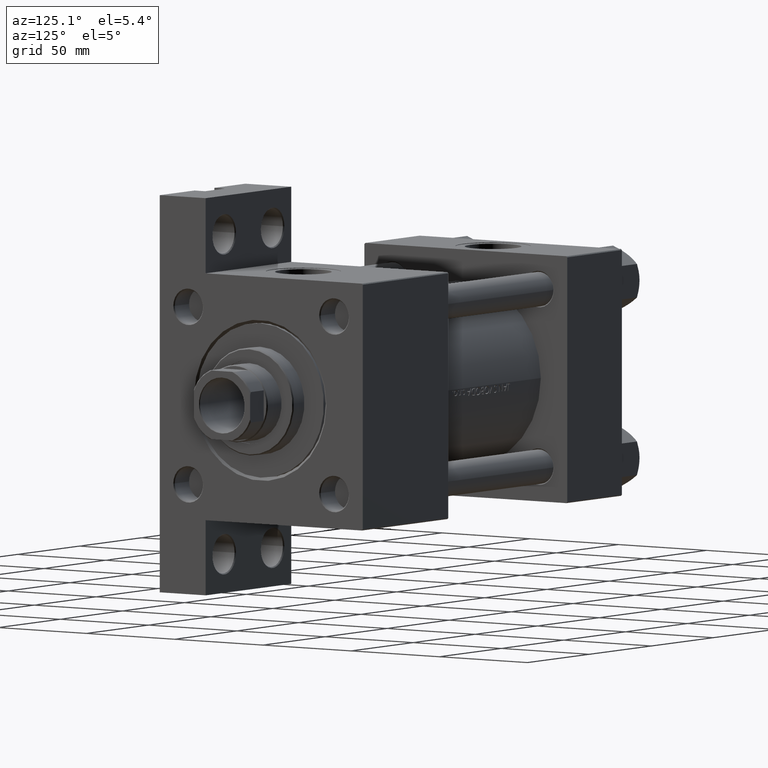
[diagram: clean part render]
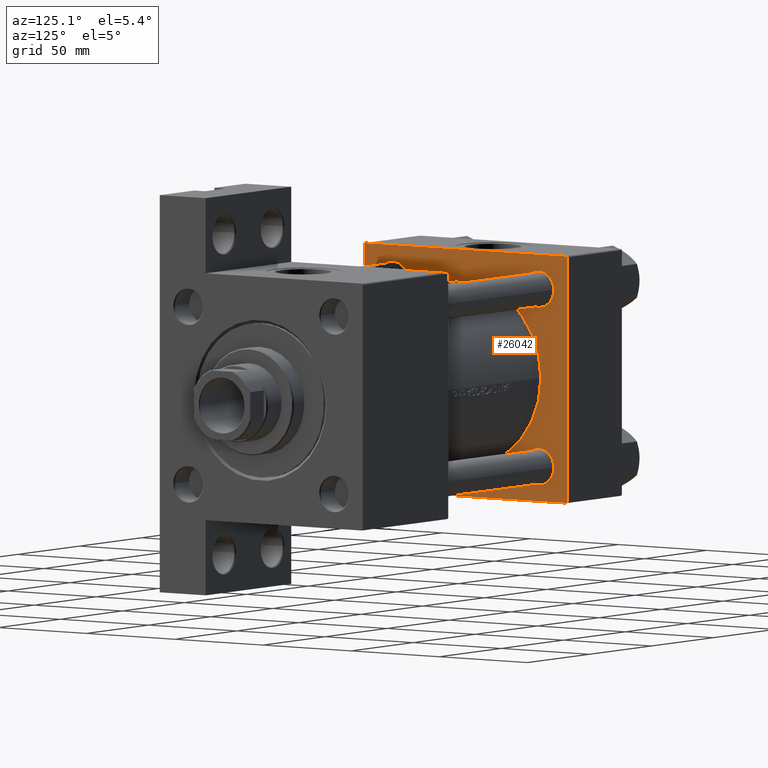
[diagram: same view with one face highlighted and labeled with its STEP entity id]
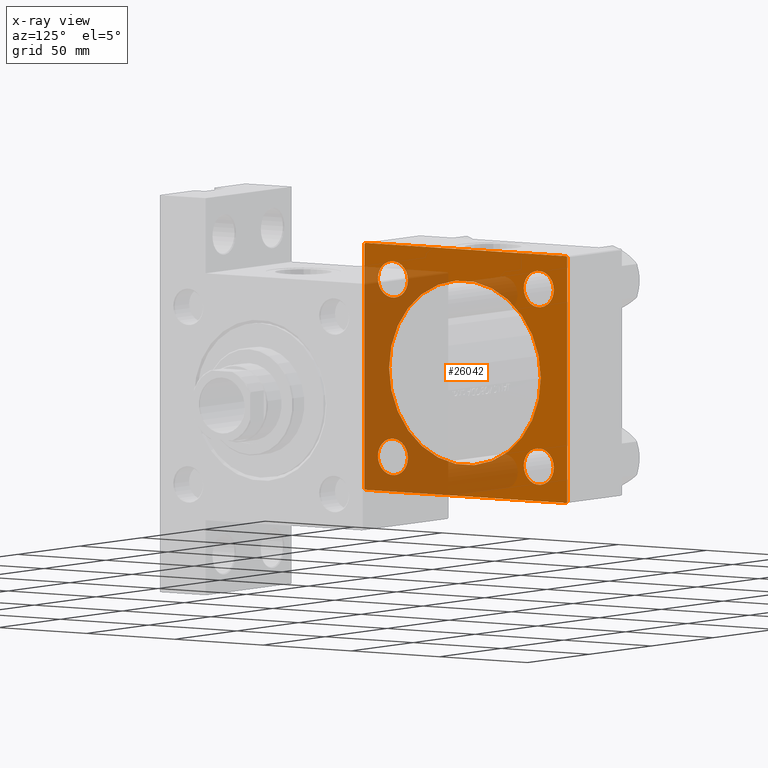
[diagram: x-ray of the same camera — body ghosted, the highlighted face saturated]
A machine part, auxiliary view. The second image highlights one B-rep face of the part: STEP entity #26042.
The next image is the same camera in x-ray: the body ghosted, the highlighted face saturated — about 48% of this face is hidden behind the body in this view.
In plain terms, the highlighted planar face has unit normal (-1, 0, -0).
Its self-contained STEP definition (entity closure, byte-faithful):
#217 = CARTESIAN_POINT ( 'NONE',  ( 44.00000000000000000, -41.34999999999998721, 41.35000000000000853 ) ) ;
#319 = LINE ( 'NONE', #29961, #40179 ) ;
#519 = DIRECTION ( 'NONE',  ( 0.000000000000000000, 0.000000000000000000, 1.000000000000000000 ) ) ;
#580 = VERTEX_POINT ( 'NONE', #42964 ) ;
#908 = DIRECTION ( 'NONE',  ( -1.000000000000000000, 0.000000000000000000, -0.000000000000000000 ) ) ;
#919 = EDGE_CURVE ( 'NONE', #14746, #15203, #5676, .T. ) ;
#975 = DIRECTION ( 'NONE',  ( -0.000000000000000000, 0.7071067811865376918, 0.7071067811865573427 ) ) ;
#1691 = LINE ( 'NONE', #16493, #5880 ) ;
#1842 = EDGE_LOOP ( 'NONE', ( #35899, #26929 ) ) ;
#2373 = AXIS2_PLACEMENT_3D ( 'NONE', #32779, #43759, #6067 ) ;
#2390 = DIRECTION ( 'NONE',  ( 0.000000000000000000, 0.000000000000000000, 1.000000000000000000 ) ) ;
#3513 = LINE ( 'NONE', #29974, #41982 ) ;
#3540 = VERTEX_POINT ( 'NONE', #28089 ) ;
#3890 = EDGE_CURVE ( 'NONE', #42439, #28582, #34301, .T. ) ;
#4475 = CARTESIAN_POINT ( 'NONE',  ( 44.00000000000000000, 57.00000000000000711, 57.50000000000000711 ) ) ;
#4510 = AXIS2_PLACEMENT_3D ( 'NONE', #20145, #42334, #28401 ) ;
#4543 = EDGE_LOOP ( 'NONE', ( #10611, #43380 ) ) ;
#4631 = VECTOR ( 'NONE', #25278, 1000.000000000000000 ) ;
#5029 = CARTESIAN_POINT ( 'NONE',  ( 44.00000000000000000, 5.327213576290985256E-15, -43.49999999999999289 ) ) ;
#5676 = CIRCLE ( 'NONE', #11871, 8.500000000000007105 ) ;
#5880 = VECTOR ( 'NONE', #975, 1000.000000000000114 ) ;
#6067 = DIRECTION ( 'NONE',  ( -0.000000000000000000, 0.000000000000000000, 1.000000000000000000 ) ) ;
#6400 = VECTOR ( 'NONE', #18292, 1000.000000000000114 ) ;
#6572 = VECTOR ( 'NONE', #20184, 1000.000000000000000 ) ;
#6607 = CARTESIAN_POINT ( 'NONE',  ( 44.00000000000000000, -41.34999999999998721, 32.85000000000000142 ) ) ;
#6739 = EDGE_LOOP ( 'NONE', ( #31881, #41284, #25767, #35139, #13524, #16496, #18196, #35755 ) ) ;
#6743 = CARTESIAN_POINT ( 'NONE',  ( 44.00000000000000000, -41.34999999999998721, -41.35000000000000853 ) ) ;
#7376 = CARTESIAN_POINT ( 'NONE',  ( 44.00000000000000000, -57.00000000000000711, -57.50000000000000711 ) ) ;
#7560 = EDGE_CURVE ( 'NONE', #24902, #28582, #1691, .T. ) ;
#8271 = CARTESIAN_POINT ( 'NONE',  ( 44.00000000000000000, 57.00000000000000711, 57.50000000000000711 ) ) ;
#8453 = DIRECTION ( 'NONE',  ( 1.000000000000000000, -0.000000000000000000, 0.000000000000000000 ) ) ;
#9080 = CIRCLE ( 'NONE', #14451, 43.00000000000000000 ) ;
#9097 = ORIENTED_EDGE ( 'NONE', *, *, #30322, .T. ) ;
#9607 = CARTESIAN_POINT ( 'NONE',  ( 44.00000000000000000, -57.50000000000000711, -57.00000000000000711 ) ) ;
#9712 = VERTEX_POINT ( 'NONE', #8271 ) ;
#9780 = EDGE_LOOP ( 'NONE', ( #37584, #37428 ) ) ;
#10611 = ORIENTED_EDGE ( 'NONE', *, *, #46184, .T. ) ;
#10665 = FACE_BOUND ( 'NONE', #22819, .T. ) ;
#10903 = CARTESIAN_POINT ( 'NONE',  ( 44.00000000000000000, -41.34999999999998721, -32.85000000000000142 ) ) ;
#11066 = CARTESIAN_POINT ( 'NONE',  ( 44.00000000000000000, -41.34999999999998721, -49.85000000000002274 ) ) ;
#11386 = DIRECTION ( 'NONE',  ( 0.000000000000000000, 0.000000000000000000, 1.000000000000000000 ) ) ;
#11613 = LINE ( 'NONE', #34699, #15396 ) ;
#11729 = DIRECTION ( 'NONE',  ( 0.000000000000000000, 0.000000000000000000, -1.000000000000000000 ) ) ;
#11871 = AXIS2_PLACEMENT_3D ( 'NONE', #27537, #46313, #12958 ) ;
#12062 = ORIENTED_EDGE ( 'NONE', *, *, #43251, .T. ) ;
#12302 = EDGE_CURVE ( 'NONE', #46141, #13417, #9080, .T. ) ;
#12422 = CIRCLE ( 'NONE', #18628, 8.500000000000007105 ) ;
#12933 = EDGE_CURVE ( 'NONE', #13417, #46141, #15279, .T. ) ;
#12958 = DIRECTION ( 'NONE',  ( 0.000000000000000000, 0.000000000000000000, 1.000000000000000000 ) ) ;
#12985 = EDGE_CURVE ( 'NONE', #25931, #15553, #319, .T. ) ;
#13417 = VERTEX_POINT ( 'NONE', #18233 ) ;
#13524 = ORIENTED_EDGE ( 'NONE', *, *, #19336, .T. ) ;
#13796 = FACE_BOUND ( 'NONE', #14192, .T. ) ;
#14179 = VERTEX_POINT ( 'NONE', #6607 ) ;
#14192 = EDGE_LOOP ( 'NONE', ( #40122, #12062 ) ) ;
#14274 = EDGE_CURVE ( 'NONE', #3540, #20086, #25384, .T. ) ;
#14300 = CARTESIAN_POINT ( 'NONE',  ( 44.00000000000000000, 41.34999999999999432, 41.35000000000000142 ) ) ;
#14451 = AXIS2_PLACEMENT_3D ( 'NONE', #18876, #8453, #45679 ) ;
#14746 = VERTEX_POINT ( 'NONE', #11066 ) ;
#14887 = LINE ( 'NONE', #7376, #6400 ) ;
#14973 = VERTEX_POINT ( 'NONE', #32171 ) ;
#15021 = DIRECTION ( 'NONE',  ( -1.000000000000000000, 0.000000000000000000, -0.000000000000000000 ) ) ;
#15203 = VERTEX_POINT ( 'NONE', #10903 ) ;
#15245 = DIRECTION ( 'NONE',  ( -0.000000000000000000, -0.7071067811865376918, -0.7071067811865573427 ) ) ;
#15279 = CIRCLE ( 'NONE', #36271, 43.00000000000000000 ) ;
#15396 = VECTOR ( 'NONE', #15245, 1000.000000000000114 ) ;
#15553 = VERTEX_POINT ( 'NONE', #9607 ) ;
#15842 = CARTESIAN_POINT ( 'NONE',  ( 44.00000000000000000, 41.34999999999999432, 49.85000000000001563 ) ) ;
#16262 = CIRCLE ( 'NONE', #31822, 8.500000000000007105 ) ;
#16493 = CARTESIAN_POINT ( 'NONE',  ( 44.00000000000000000, 57.49999999999999289, -57.00000000000000711 ) ) ;
#16496 = ORIENTED_EDGE ( 'NONE', *, *, #35814, .T. ) ;
#16943 = DIRECTION ( 'NONE',  ( -1.000000000000000000, 0.000000000000000000, -0.000000000000000000 ) ) ;
#17214 = PLANE ( 'NONE',  #2373 ) ;
#17931 = FACE_BOUND ( 'NONE', #9780, .T. ) ;
#18196 = ORIENTED_EDGE ( 'NONE', *, *, #12985, .T. ) ;
#18233 = CARTESIAN_POINT ( 'NONE',  ( 44.00000000000000000, 6.123233995736685917E-17, 42.50000000000000000 ) ) ;
#18292 = DIRECTION ( 'NONE',  ( 0.000000000000000000, 0.7071067811865474617, -0.7071067811865474617 ) ) ;
#18341 = CARTESIAN_POINT ( 'NONE',  ( 44.00000000000000000, 57.00000000000002132, -57.49999999999999289 ) ) ;
#18628 = AXIS2_PLACEMENT_3D ( 'NONE', #45524, #33805, #519 ) ;
#18876 = CARTESIAN_POINT ( 'NONE',  ( 44.00000000000000000, 6.123233995736685917E-17, -0.4999999999999935052 ) ) ;
#19091 = CIRCLE ( 'NONE', #43997, 8.500000000000007105 ) ;
#19336 = EDGE_CURVE ( 'NONE', #9712, #19633, #44298, .T. ) ;
#19354 = CARTESIAN_POINT ( 'NONE',  ( 44.00000000000000000, -41.34999999999998721, 41.35000000000000853 ) ) ;
#19633 = VERTEX_POINT ( 'NONE', #20793 ) ;
#20086 = VERTEX_POINT ( 'NONE', #15842 ) ;
#20143 = VERTEX_POINT ( 'NONE', #34331 ) ;
#20145 = CARTESIAN_POINT ( 'NONE',  ( 44.00000000000000000, 41.34999999999999432, -41.35000000000000142 ) ) ;
#20184 = DIRECTION ( 'NONE',  ( 0.000000000000000000, 0.000000000000000000, -1.000000000000000000 ) ) ;
#20590 = EDGE_CURVE ( 'NONE', #15203, #14746, #16262, .T. ) ;
#20793 = CARTESIAN_POINT ( 'NONE',  ( 44.00000000000000000, -57.00000000000003553, 57.49999999999999289 ) ) ;
#21581 = DIRECTION ( 'NONE',  ( 0.000000000000000000, 0.000000000000000000, 1.000000000000000000 ) ) ;
#22535 = CARTESIAN_POINT ( 'NONE',  ( 44.00000000000000000, 41.34999999999999432, -49.85000000000001563 ) ) ;
#22748 = DIRECTION ( 'NONE',  ( 0.000000000000000000, 0.000000000000000000, 1.000000000000000000 ) ) ;
#22819 = EDGE_LOOP ( 'NONE', ( #29090, #9097 ) ) ;
#24902 = VERTEX_POINT ( 'NONE', #18341 ) ;
#25278 = DIRECTION ( 'NONE',  ( 0.000000000000000000, -1.000000000000000000, -1.206764157201257045E-16 ) ) ;
#25297 = CARTESIAN_POINT ( 'NONE',  ( 44.00000000000000000, 41.34999999999999432, 41.35000000000000142 ) ) ;
#25384 = CIRCLE ( 'NONE', #45655, 8.500000000000007105 ) ;
#25525 = CARTESIAN_POINT ( 'NONE',  ( 44.00000000000000000, 57.49999999999999289, 57.50000000000000711 ) ) ;
#25767 = ORIENTED_EDGE ( 'NONE', *, *, #3890, .F. ) ;
#25931 = VERTEX_POINT ( 'NONE', #27213 ) ;
#26042 = ADVANCED_FACE ( 'NONE', ( #17931, #13796, #44010, #10665, #40339, #43526 ), #17214, .F. ) ;
#26064 = DIRECTION ( 'NONE',  ( 0.000000000000000000, 0.000000000000000000, 1.000000000000000000 ) ) ;
#26358 = CARTESIAN_POINT ( 'NONE',  ( 44.00000000000000000, 57.49999999999999289, -57.00000000000000711 ) ) ;
#26929 = ORIENTED_EDGE ( 'NONE', *, *, #12302, .F. ) ;
#27213 = CARTESIAN_POINT ( 'NONE',  ( 44.00000000000000000, -57.50000000000000711, 57.00000000000000711 ) ) ;
#27478 = CARTESIAN_POINT ( 'NONE',  ( 44.00000000000000000, 57.49999999999999289, 57.50000000000000711 ) ) ;
#27537 = CARTESIAN_POINT ( 'NONE',  ( 44.00000000000000000, -41.34999999999998721, -41.35000000000000853 ) ) ;
#28089 = CARTESIAN_POINT ( 'NONE',  ( 44.00000000000000000, 41.34999999999999432, 32.84999999999999432 ) ) ;
#28401 = DIRECTION ( 'NONE',  ( 0.000000000000000000, 0.000000000000000000, 1.000000000000000000 ) ) ;
#28582 = VERTEX_POINT ( 'NONE', #26358 ) ;
#28832 = CIRCLE ( 'NONE', #29601, 8.500000000000007105 ) ;
#29090 = ORIENTED_EDGE ( 'NONE', *, *, #14274, .T. ) ;
#29328 = CIRCLE ( 'NONE', #4510, 8.500000000000007105 ) ;
#29601 = AXIS2_PLACEMENT_3D ( 'NONE', #19354, #908, #22748 ) ;
#29621 = DIRECTION ( 'NONE',  ( -1.000000000000000000, 0.000000000000000000, -0.000000000000000000 ) ) ;
#29961 = CARTESIAN_POINT ( 'NONE',  ( 44.00000000000000000, -57.50000000000000711, 57.49999999999999289 ) ) ;
#29974 = CARTESIAN_POINT ( 'NONE',  ( 44.00000000000000000, 57.49999999999999289, -57.49999999999999289 ) ) ;
#30214 = LINE ( 'NONE', #4475, #48159 ) ;
#30322 = EDGE_CURVE ( 'NONE', #20086, #3540, #40079, .T. ) ;
#30377 = EDGE_CURVE ( 'NONE', #580, #14179, #19091, .T. ) ;
#31822 = AXIS2_PLACEMENT_3D ( 'NONE', #6743, #16943, #2390 ) ;
#31881 = ORIENTED_EDGE ( 'NONE', *, *, #42835, .F. ) ;
#32127 = DIRECTION ( 'NONE',  ( 0.000000000000000000, 0.000000000000000000, 1.000000000000000000 ) ) ;
#32171 = CARTESIAN_POINT ( 'NONE',  ( 44.00000000000000000, -57.00000000000000711, -57.50000000000000711 ) ) ;
#32779 = CARTESIAN_POINT ( 'NONE',  ( 44.00000000000000000, 0.000000000000000000, 0.000000000000000000 ) ) ;
#33152 = DIRECTION ( 'NONE',  ( 0.000000000000000000, -1.000000000000000000, -1.206764157201257045E-16 ) ) ;
#33805 = DIRECTION ( 'NONE',  ( -1.000000000000000000, 0.000000000000000000, -0.000000000000000000 ) ) ;
#34105 = DIRECTION ( 'NONE',  ( 0.000000000000000000, -0.7071067811865573427, 0.7071067811865376918 ) ) ;
#34301 = LINE ( 'NONE', #27478, #6572 ) ;
#34331 = CARTESIAN_POINT ( 'NONE',  ( 44.00000000000000000, 41.34999999999999432, -32.84999999999999432 ) ) ;
#34665 = EDGE_CURVE ( 'NONE', #41510, #20143, #29328, .T. ) ;
#34699 = CARTESIAN_POINT ( 'NONE',  ( 44.00000000000000000, -57.50000000000000711, 57.00000000000000711 ) ) ;
#35139 = ORIENTED_EDGE ( 'NONE', *, *, #38371, .T. ) ;
#35755 = ORIENTED_EDGE ( 'NONE', *, *, #47742, .T. ) ;
#35814 = EDGE_CURVE ( 'NONE', #19633, #25931, #11613, .T. ) ;
#35899 = ORIENTED_EDGE ( 'NONE', *, *, #12933, .F. ) ;
#36271 = AXIS2_PLACEMENT_3D ( 'NONE', #44598, #41425, #26064 ) ;
#37428 = ORIENTED_EDGE ( 'NONE', *, *, #20590, .T. ) ;
#37584 = ORIENTED_EDGE ( 'NONE', *, *, #919, .T. ) ;
#37898 = CARTESIAN_POINT ( 'NONE',  ( 44.00000000000000000, 57.49999999999999289, 57.00000000000003553 ) ) ;
#38371 = EDGE_CURVE ( 'NONE', #42439, #9712, #30214, .T. ) ;
#40079 = CIRCLE ( 'NONE', #43229, 8.500000000000007105 ) ;
#40122 = ORIENTED_EDGE ( 'NONE', *, *, #34665, .T. ) ;
#40179 = VECTOR ( 'NONE', #11729, 1000.000000000000000 ) ;
#40339 = FACE_BOUND ( 'NONE', #1842, .T. ) ;
#41284 = ORIENTED_EDGE ( 'NONE', *, *, #7560, .T. ) ;
#41425 = DIRECTION ( 'NONE',  ( 1.000000000000000000, -0.000000000000000000, 0.000000000000000000 ) ) ;
#41510 = VERTEX_POINT ( 'NONE', #22535 ) ;
#41982 = VECTOR ( 'NONE', #33152, 1000.000000000000000 ) ;
#42334 = DIRECTION ( 'NONE',  ( -1.000000000000000000, 0.000000000000000000, -0.000000000000000000 ) ) ;
#42439 = VERTEX_POINT ( 'NONE', #37898 ) ;
#42835 = EDGE_CURVE ( 'NONE', #24902, #14973, #3513, .T. ) ;
#42964 = CARTESIAN_POINT ( 'NONE',  ( 44.00000000000000000, -41.34999999999998721, 49.85000000000002274 ) ) ;
#43229 = AXIS2_PLACEMENT_3D ( 'NONE', #14300, #29621, #21581 ) ;
#43251 = EDGE_CURVE ( 'NONE', #20143, #41510, #12422, .T. ) ;
#43380 = ORIENTED_EDGE ( 'NONE', *, *, #30377, .T. ) ;
#43526 = FACE_OUTER_BOUND ( 'NONE', #6739, .T. ) ;
#43759 = DIRECTION ( 'NONE',  ( -1.000000000000000000, 0.000000000000000000, -0.000000000000000000 ) ) ;
#43829 = DIRECTION ( 'NONE',  ( -1.000000000000000000, 0.000000000000000000, -0.000000000000000000 ) ) ;
#43997 = AXIS2_PLACEMENT_3D ( 'NONE', #217, #15021, #11386 ) ;
#44010 = FACE_BOUND ( 'NONE', #4543, .T. ) ;
#44298 = LINE ( 'NONE', #25525, #4631 ) ;
#44598 = CARTESIAN_POINT ( 'NONE',  ( 44.00000000000000000, 6.123233995736685917E-17, -0.4999999999999935052 ) ) ;
#45524 = CARTESIAN_POINT ( 'NONE',  ( 44.00000000000000000, 41.34999999999999432, -41.35000000000000142 ) ) ;
#45655 = AXIS2_PLACEMENT_3D ( 'NONE', #25297, #43829, #32127 ) ;
#45679 = DIRECTION ( 'NONE',  ( 0.000000000000000000, 0.000000000000000000, 1.000000000000000000 ) ) ;
#46141 = VERTEX_POINT ( 'NONE', #5029 ) ;
#46184 = EDGE_CURVE ( 'NONE', #14179, #580, #28832, .T. ) ;
#46313 = DIRECTION ( 'NONE',  ( -1.000000000000000000, 0.000000000000000000, -0.000000000000000000 ) ) ;
#47742 = EDGE_CURVE ( 'NONE', #15553, #14973, #14887, .T. ) ;
#48159 = VECTOR ( 'NONE', #34105, 1000.000000000000114 ) ;